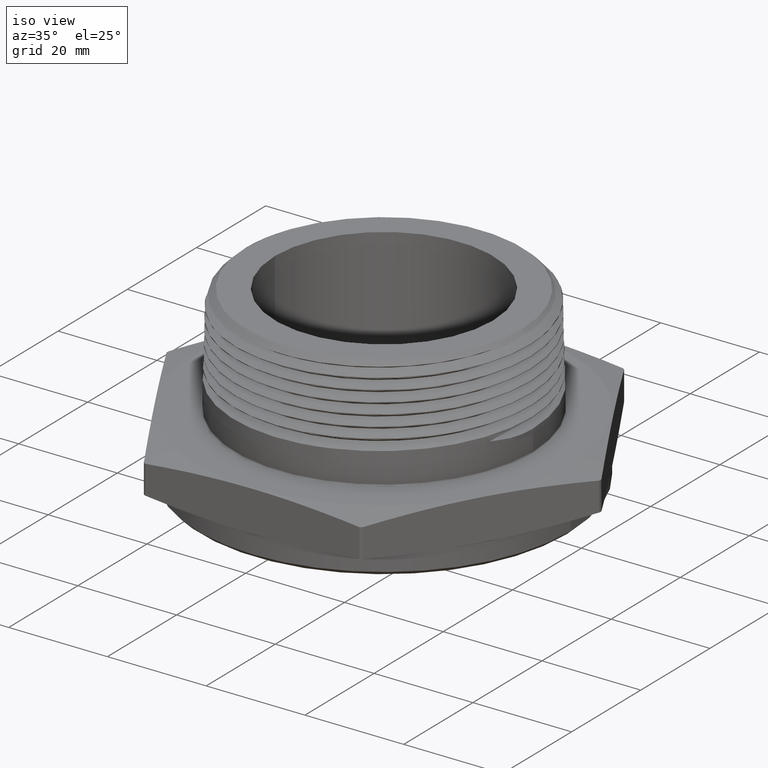
[diagram: clean part render]
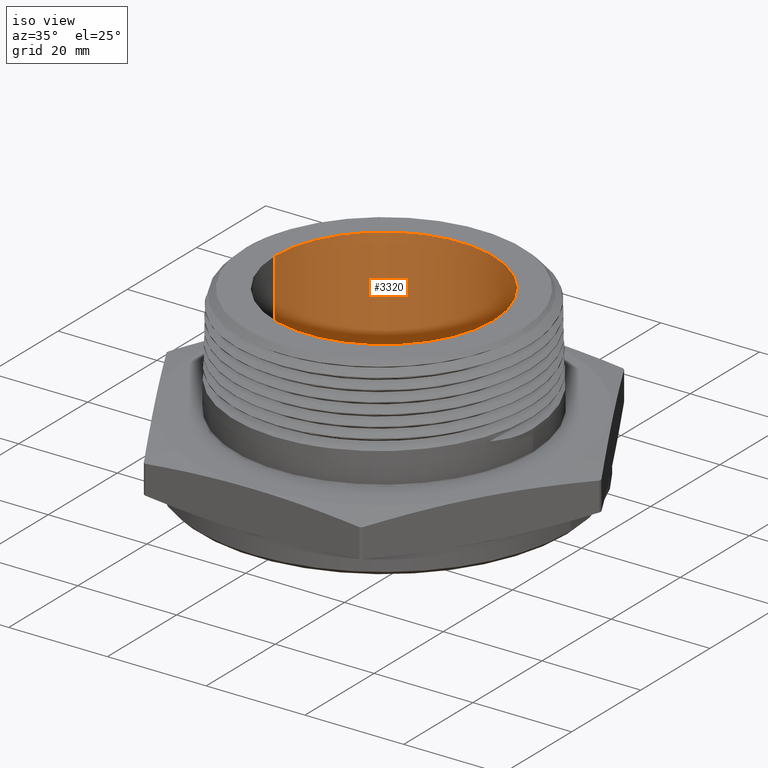
[diagram: same view with one face highlighted and labeled with its STEP entity id]
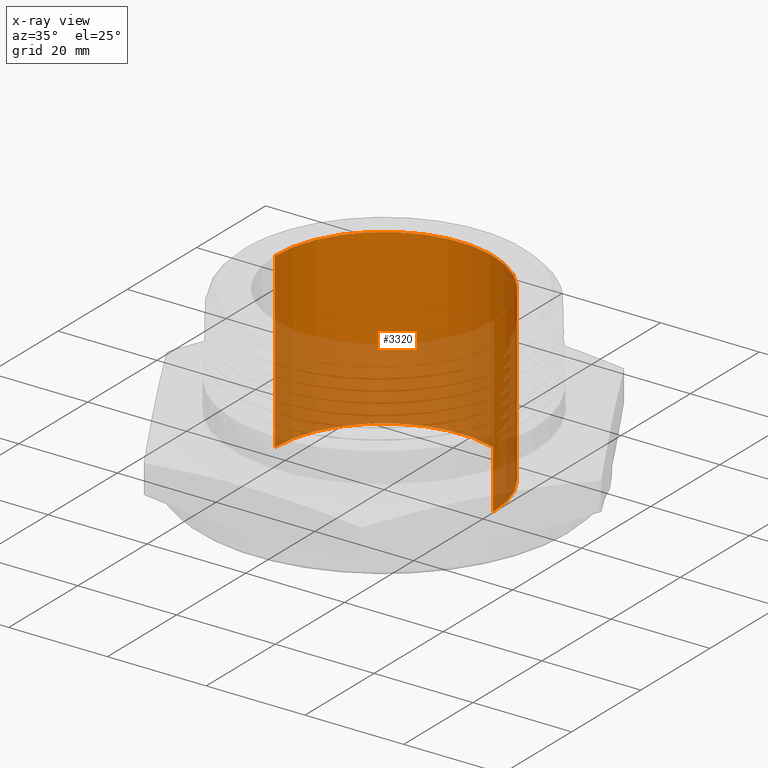
[diagram: x-ray of the same camera — body ghosted, the highlighted face saturated]
A machine part, iso view. The second image highlights one B-rep face of the part: STEP entity #3320.
The next image is the same camera in x-ray: the body ghosted, the highlighted face saturated — about 48% of this face is hidden behind the body in this view.
In plain terms, the highlighted cylindrical surface (partial cylindrical patch) has radius 22.098 mm, axis along (0, 0, -1).
Its self-contained STEP definition (entity closure, byte-faithful):
#182 = VERTEX_POINT ( 'NONE', #885 ) ;
#185 = VERTEX_POINT ( 'NONE', #884 ) ;
#246 = DIRECTION ( 'NONE',  ( 0.0000000000000000000, 0.0000000000000000000, -1.000000000000000000 ) ) ;
#248 = DIRECTION ( 'NONE',  ( -1.000000000000000000, 0.0000000000000000000, 0.0000000000000000000 ) ) ;
#259 = CARTESIAN_POINT ( 'NONE',  ( 4.981912577346603700E-017, 0.0000000000000000000, 3.745584412271570700 ) ) ;
#323 = CIRCLE ( 'NONE', #5399, 0.8700000000000000000 ) ;
#328 = CIRCLE ( 'NONE', #5400, 0.8700000000000000000 ) ;
#739 = CARTESIAN_POINT ( 'NONE',  ( 0.8700000000000000000, 1.065442715258197300E-016, -0.1799999999999999900 ) ) ;
#740 = CARTESIAN_POINT ( 'NONE',  ( -0.8700000000000000000, 0.0000000000000000000, -0.1799999999999999900 ) ) ;
#854 = VERTEX_POINT ( 'NONE', #739 ) ;
#856 = VERTEX_POINT ( 'NONE', #740 ) ;
#884 = CARTESIAN_POINT ( 'NONE',  ( -0.8700000000000000000, 0.0000000000000000000, 1.200000000000000400 ) ) ;
#885 = CARTESIAN_POINT ( 'NONE',  ( 0.8700000000000000000, 1.065442715258197300E-016, 1.200000000000000400 ) ) ;
#1495 = DIRECTION ( 'NONE',  ( 0.0000000000000000000, 0.0000000000000000000, -1.000000000000000000 ) ) ;
#1496 = DIRECTION ( 'NONE',  ( 0.0000000000000000000, 0.0000000000000000000, -1.000000000000000000 ) ) ;
#1497 = CARTESIAN_POINT ( 'NONE',  ( -0.8700000000000000000, 0.0000000000000000000, 3.745584412271570700 ) ) ;
#1501 = CARTESIAN_POINT ( 'NONE',  ( 0.8700000000000000000, 1.065442715258197300E-016, 3.745584412271570700 ) ) ;
#2847 = FACE_OUTER_BOUND ( 'NONE', #7204, .T. ) ;
#2852 = CYLINDRICAL_SURFACE ( 'NONE', #5834, 0.8700000000000000000 ) ;
#3008 = ORIENTED_EDGE ( 'NONE', *, *, #5724, .F. ) ;
#3009 = ORIENTED_EDGE ( 'NONE', *, *, #5650, .F. ) ;
#3010 = ORIENTED_EDGE ( 'NONE', *, *, #5722, .T. ) ;
#3011 = ORIENTED_EDGE ( 'NONE', *, *, #5649, .T. ) ;
#3320 = ADVANCED_FACE ( 'NONE', ( #2847 ), #2852, .F. ) ;
#5399 = AXIS2_PLACEMENT_3D ( 'NONE', #6189, #6190, #6191 ) ;
#5400 = AXIS2_PLACEMENT_3D ( 'NONE', #6194, #6195, #6196 ) ;
#5649 = EDGE_CURVE ( 'NONE', #856, #854, #323, .T. ) ;
#5650 = EDGE_CURVE ( 'NONE', #185, #182, #328, .T. ) ;
#5722 = EDGE_CURVE ( 'NONE', #185, #856, #7441, .T. ) ;
#5724 = EDGE_CURVE ( 'NONE', #182, #854, #7443, .T. ) ;
#5834 = AXIS2_PLACEMENT_3D ( 'NONE', #259, #246, #248 ) ;
#6189 = CARTESIAN_POINT ( 'NONE',  ( 4.981912577346603700E-017, 0.0000000000000000000, -0.1799999999999999900 ) ) ;
#6190 = DIRECTION ( 'NONE',  ( 0.0000000000000000000, 0.0000000000000000000, -1.000000000000000000 ) ) ;
#6191 = DIRECTION ( 'NONE',  ( -1.000000000000000000, 0.0000000000000000000, 0.0000000000000000000 ) ) ;
#6194 = CARTESIAN_POINT ( 'NONE',  ( 4.981912577346603700E-017, 0.0000000000000000000, 1.200000000000000400 ) ) ;
#6195 = DIRECTION ( 'NONE',  ( -0.0000000000000000000, -0.0000000000000000000, -1.000000000000000000 ) ) ;
#6196 = DIRECTION ( 'NONE',  ( 1.000000000000000000, 0.0000000000000000000, 0.0000000000000000000 ) ) ;
#7204 = EDGE_LOOP ( 'NONE', ( #3008, #3009, #3010, #3011 ) ) ;
#7441 = LINE ( 'NONE', #1497, #7445 ) ;
#7443 = LINE ( 'NONE', #1501, #7448 ) ;
#7445 = VECTOR ( 'NONE', #1495, 39.37007874015748100 ) ;
#7448 = VECTOR ( 'NONE', #1496, 39.37007874015748100 ) ;